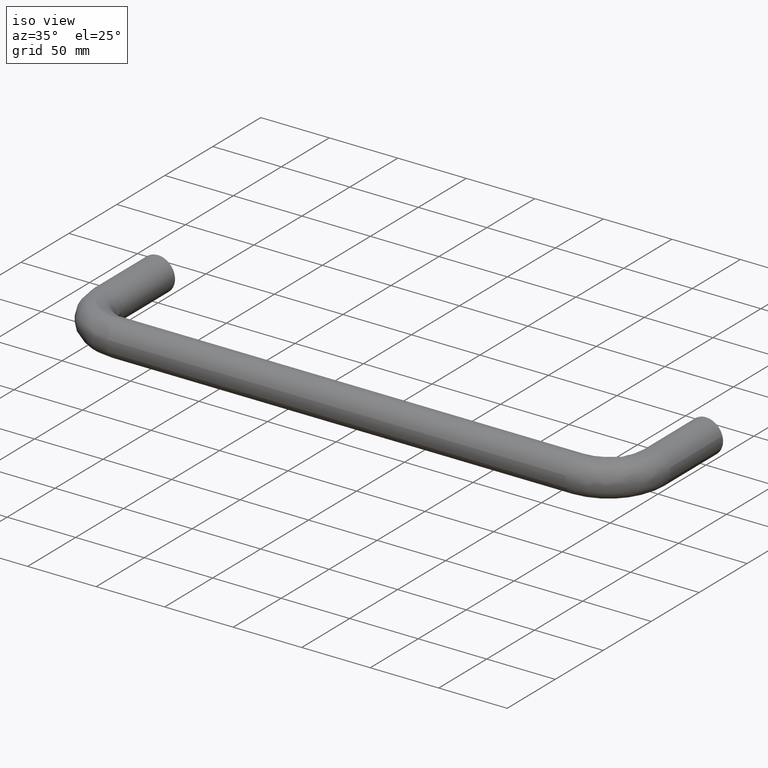
[diagram: clean part render]
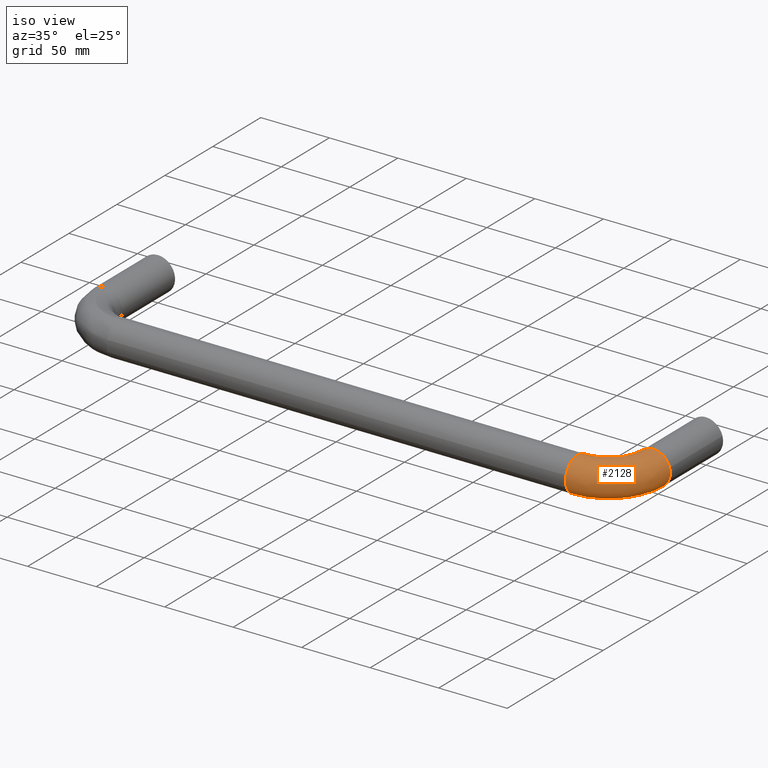
[diagram: same view with one face highlighted and labeled with its STEP entity id]
A machine part, iso view. The second image highlights one B-rep face of the part: STEP entity #2128.
In plain terms, the highlighted face is a freeform B-spline surface patch.
Its self-contained STEP definition (entity closure, byte-faithful):
#1170=CARTESIAN_POINT('',(411.436217568483300,-55.000000000403787,-5.046080430949266));
#1171=VERTEX_POINT('',#1170);
#1172=CARTESIAN_POINT('',(405.036330454572180,-55.000000002833112,-11.440514654173059));
#1173=VERTEX_POINT('',#1172);
#1174=CARTESIAN_POINT('',(411.436217568483300,-55.000000000403787,-5.046080430949266));
#1175=CARTESIAN_POINT('',(409.477393143603480,-55.000000001147335,-9.485475043565112));
#1176=CARTESIAN_POINT('',(405.036330454572240,-55.000000002833112,-11.440514654173068));
#1184=(BOUNDED_CURVE()B_SPLINE_CURVE(2,(#1174,#1175,#1176),.UNSPECIFIED.,.F.,.U.)B_SPLINE_CURVE_WITH_KNOTS((3,3),(0.318548117644688,0.431585009638875),.UNSPECIFIED.)CURVE()GEOMETRIC_REPRESENTATION_ITEM()RATIONAL_B_SPLINE_CURVE((0.883422078894007,0.823614264653065,0.883563120282062))REPRESENTATION_ITEM(''));
#1185=EDGE_CURVE('',#1171,#1173,#1184,.T.);
#1202=CARTESIAN_POINT('',(388.559485342505410,-55.000000000164668,-5.036330447026957));
#1203=VERTEX_POINT('',#1202);
#1217=CARTESIAN_POINT('',(400.0,-55.0,12.500000000000000));
#1218=VERTEX_POINT('',#1217);
#1219=CARTESIAN_POINT('',(388.559485342505470,-55.000000000164654,-5.036330447026957));
#1220=CARTESIAN_POINT('',(387.500000000000000,-55.000000000000007,-2.629606401398224));
#1221=CARTESIAN_POINT('',(387.500000000000000,-55.0,0.0));
#1222=CARTESIAN_POINT('',(387.499999999999940,-55.0,12.499999999999998));
#1223=CARTESIAN_POINT('',(400.0,-55.0,12.500000000000000));
#1231=(BOUNDED_CURVE()B_SPLINE_CURVE(2,(#1219,#1220,#1221,#1222,#1223),.UNSPECIFIED.,.F.,.U.)B_SPLINE_CURVE_WITH_KNOTS((3,2,3),(0.681585009844901,0.750000000000000,1.0),.UNSPECIFIED.)CURVE()GEOMETRIC_REPRESENTATION_ITEM()RATIONAL_B_SPLINE_CURVE((0.883563120500592,0.919846853273529,1.0,0.707106781186547,1.0))REPRESENTATION_ITEM(''));
#1232=EDGE_CURVE('',#1203,#1218,#1231,.T.);
#1234=CARTESIAN_POINT('',(412.045380664979120,-55.0,3.340479701442453));
#1235=VERTEX_POINT('',#1234);
#1236=CARTESIAN_POINT('',(400.0,-55.0,12.500000000000000));
#1237=CARTESIAN_POINT('',(409.505220873614410,-54.999999999999993,12.499999999999998));
#1238=CARTESIAN_POINT('',(412.045380664979120,-55.000000000000007,3.340479701442453));
#1246=(BOUNDED_CURVE()B_SPLINE_CURVE(2,(#1236,#1237,#1238),.UNSPECIFIED.,.F.,.U.)B_SPLINE_CURVE_WITH_KNOTS((3,3),(0.0,0.204451173353575),.UNSPECIFIED.)CURVE()GEOMETRIC_REPRESENTATION_ITEM()RATIONAL_B_SPLINE_CURVE((1.0,0.760470550985137,0.912717717200866))REPRESENTATION_ITEM(''));
#1247=EDGE_CURVE('',#1218,#1235,#1246,.T.);
#1325=CARTESIAN_POINT('',(412.045380664979180,-55.000000000000007,3.340479701442453));
#1326=CARTESIAN_POINT('',(412.500000000000060,-55.000000000000007,1.701175339017233));
#1327=CARTESIAN_POINT('',(412.500000000000110,-55.0,0.0));
#1328=CARTESIAN_POINT('',(412.500000000000000,-54.999999999999993,-2.635170122350718));
#1329=CARTESIAN_POINT('',(411.436217568483360,-55.000000000403794,-5.046080430949266));
#1337=(BOUNDED_CURVE()B_SPLINE_CURVE(2,(#1325,#1326,#1327,#1328,#1329),.UNSPECIFIED.,.F.,.U.)B_SPLINE_CURVE_WITH_KNOTS((3,2,3),(0.204451173353575,0.250000000000000,0.318548117644687),.UNSPECIFIED.)CURVE()GEOMETRIC_REPRESENTATION_ITEM()RATIONAL_B_SPLINE_CURVE((0.912717717200866,0.946636230201411,1.0,0.919690884717777,0.883422078894007))REPRESENTATION_ITEM(''));
#1338=EDGE_CURVE('',#1235,#1171,#1337,.T.);
#1386=CARTESIAN_POINT('',(367.499999999861190,-98.936217568713488,-5.046080431050863));
#1387=VERTEX_POINT('',#1386);
#1388=CARTESIAN_POINT('',(367.499999999025990,-92.536330449781843,-11.440514656281859));
#1389=VERTEX_POINT('',#1388);
#1390=CARTESIAN_POINT('',(367.499999999861250,-98.936217568713474,-5.046080431050863));
#1391=CARTESIAN_POINT('',(367.499999999605450,-96.977393142822223,-9.485475048348869));
#1392=CARTESIAN_POINT('',(367.499999999026100,-92.536330449781843,-11.440514656281859));
#1400=(BOUNDED_CURVE()B_SPLINE_CURVE(2,(#1390,#1391,#1392),.UNSPECIFIED.,.F.,.U.)B_SPLINE_CURVE_WITH_KNOTS((3,3),(0.318548117651567,0.431585009769677),.UNSPECIFIED.)CURVE()GEOMETRIC_REPRESENTATION_ITEM()RATIONAL_B_SPLINE_CURVE((0.883422078886727,0.823614264587506,0.883563120420803))REPRESENTATION_ITEM(''));
#1401=EDGE_CURVE('',#1387,#1389,#1400,.T.);
#1487=CARTESIAN_POINT('',(367.500000000000000,-99.545380664979035,3.340479701442447));
#1488=VERTEX_POINT('',#1487);
#1494=CARTESIAN_POINT('',(367.500000000000000,-87.500000000000000,12.500000000000000));
#1495=VERTEX_POINT('',#1494);
#1496=CARTESIAN_POINT('',(367.500000000000000,-87.500000000000000,12.500000000000000));
#1497=CARTESIAN_POINT('',(367.499999999999940,-97.005220873614405,12.499999999999998));
#1498=CARTESIAN_POINT('',(367.500000000000000,-99.545380664979035,3.340479701442447));
#1506=(BOUNDED_CURVE()B_SPLINE_CURVE(2,(#1496,#1497,#1498),.UNSPECIFIED.,.F.,.U.)B_SPLINE_CURVE_WITH_KNOTS((3,3),(0.0,0.204451173353575),.UNSPECIFIED.)CURVE()GEOMETRIC_REPRESENTATION_ITEM()RATIONAL_B_SPLINE_CURVE((1.0,0.760470550985137,0.912717717200867))REPRESENTATION_ITEM(''));
#1507=EDGE_CURVE('',#1495,#1488,#1506,.T.);
#1509=CARTESIAN_POINT('',(367.499999998566010,-76.059485343306193,-5.036330448846069));
#1510=VERTEX_POINT('',#1509);
#1511=CARTESIAN_POINT('',(367.499999998566010,-76.059485343306193,-5.036330448846069));
#1512=CARTESIAN_POINT('',(367.500000000000000,-75.0,-2.629606403473759));
#1513=CARTESIAN_POINT('',(367.500000000000000,-75.0,0.0));
#1514=CARTESIAN_POINT('',(367.500000000000000,-75.0,12.499999999999998));
#1515=CARTESIAN_POINT('',(367.500000000000000,-87.500000000000000,12.500000000000000));
#1523=(BOUNDED_CURVE()B_SPLINE_CURVE(2,(#1511,#1512,#1513,#1514,#1515),.UNSPECIFIED.,.F.,.U.)B_SPLINE_CURVE_WITH_KNOTS((3,2,3),(0.681585009795229,0.750000000000000,1.0),.UNSPECIFIED.)CURVE()GEOMETRIC_REPRESENTATION_ITEM()RATIONAL_B_SPLINE_CURVE((0.883563120447906,0.919846853215335,1.0,0.707106781186547,1.0))REPRESENTATION_ITEM(''));
#1524=EDGE_CURVE('',#1510,#1495,#1523,.T.);
#1571=CARTESIAN_POINT('',(367.500000000000000,-99.545380664979035,3.340479701442448));
#1572=CARTESIAN_POINT('',(367.499999999999940,-99.999999999999986,1.701175339017228));
#1573=CARTESIAN_POINT('',(367.500000000000000,-99.999999999999986,0.0));
#1574=CARTESIAN_POINT('',(367.500000000000000,-99.999999999999986,-2.635170122638260));
#1575=CARTESIAN_POINT('',(367.499999999861190,-98.936217568713502,-5.046080431050863));
#1583=(BOUNDED_CURVE()B_SPLINE_CURVE(2,(#1571,#1572,#1573,#1574,#1575),.UNSPECIFIED.,.F.,.U.)B_SPLINE_CURVE_WITH_KNOTS((3,2,3),(0.204451173353575,0.250000000000000,0.318548117651566),.UNSPECIFIED.)CURVE()GEOMETRIC_REPRESENTATION_ITEM()RATIONAL_B_SPLINE_CURVE((0.912717717200867,0.946636230201411,1.0,0.919690884709718,0.883422078886728))REPRESENTATION_ITEM(''));
#1584=EDGE_CURVE('',#1488,#1387,#1583,.T.);
#2035=CARTESIAN_POINT('',(364.623906922201230,-92.181548807276030,-11.547800733240207));
#2036=CARTESIAN_POINT('',(370.069044684096470,-92.602744898536827,-11.547800733240203));
#2037=CARTESIAN_POINT('',(375.406300521208550,-91.444888464205079,-11.547800733240200));
#2038=CARTESIAN_POINT('',(407.114252958828670,-84.566211880238185,-11.547800733240205));
#2039=CARTESIAN_POINT('',(404.688223559311500,-52.211539564081633,-11.547800733240210));
#2040=CARTESIAN_POINT('',(364.614550799030840,-92.302502872702192,-11.494395410791146));
#2041=CARTESIAN_POINT('',(370.077401958303030,-92.725069143022637,-11.494395410791151));
#2042=CARTESIAN_POINT('',(375.432020245674100,-91.563446124258419,-11.494395410791155));
#2043=CARTESIAN_POINT('',(407.243120773588880,-84.662392745233959,-11.494395410791149));
#2044=CARTESIAN_POINT('',(404.809199338152670,-52.202468515757296,-11.494395410791155));
#2045=CARTESIAN_POINT('',(363.722792435613200,-103.830974384857380,-6.404184211340684));
#2046=CARTESIAN_POINT('',(370.873957223054620,-104.384136267649470,-6.404184211340684));
#2047=CARTESIAN_POINT('',(377.883439383637780,-102.863509513254230,-6.404184211340684));
#2048=CARTESIAN_POINT('',(419.525873949857610,-93.829660982241066,-6.404184211340684));
#2049=CARTESIAN_POINT('',(416.339740416830860,-51.337881436158114,-6.404184211340683));
#2050=CARTESIAN_POINT('',(364.111205887286190,-98.809643948000627,5.036330446420782));
#2051=CARTESIAN_POINT('',(370.527010345377110,-99.305923726072024,5.036330446420783));
#2052=CARTESIAN_POINT('',(376.815701521079690,-97.941664308211244,5.036330446420782));
#2053=CARTESIAN_POINT('',(414.176009285893370,-89.836774069801720,5.036330446420782));
#2054=CARTESIAN_POINT('',(411.317508561484940,-51.714460188469481,5.036330446420782));
#2055=CARTESIAN_POINT('',(364.499619338959460,-93.788313511143841,16.476845104182242));
#2056=CARTESIAN_POINT('',(370.180063467699770,-94.227711184494538,16.476845104182253));
#2057=CARTESIAN_POINT('',(375.747963658521660,-93.019819103168246,16.476845104182242));
#2058=CARTESIAN_POINT('',(408.826144621929070,-85.843887157362403,16.476845104182246));
#2059=CARTESIAN_POINT('',(406.295276706138790,-52.091038940780827,16.476845104182257));
#2060=CARTESIAN_POINT('',(365.381938288125010,-82.381872834648888,11.440514657761472));
#2061=CARTESIAN_POINT('',(369.391939876175740,-82.692057272342296,11.440514657761465));
#2062=CARTESIAN_POINT('',(373.322493209908710,-81.839368810923276,11.440514657761470));
#2063=CARTESIAN_POINT('',(396.673406481281290,-76.773656016947371,11.440514657761467));
#2064=CARTESIAN_POINT('',(394.886788369835070,-52.946474218797881,11.440514657761472));
#2065=CARTESIAN_POINT('',(366.264257237290680,-70.975432158153978,6.404184211340685));
#2066=CARTESIAN_POINT('',(368.603816284651830,-71.156403360190069,6.404184211340685));
#2067=CARTESIAN_POINT('',(370.897022761295770,-70.658918518678320,6.404184211340686));
#2068=CARTESIAN_POINT('',(384.520668340633390,-67.703424876532353,6.404184211340686));
#2069=CARTESIAN_POINT('',(383.478300033531180,-53.801909496814893,6.404184211340686));
#2070=CARTESIAN_POINT('',(365.871741792310900,-76.049792333693560,-5.157152509482980));
#2071=CARTESIAN_POINT('',(368.954427231541900,-76.288246366331080,-5.157152509482982));
#2072=CARTESIAN_POINT('',(371.976036890282500,-75.632742809412392,-5.157152509482979));
#2073=CARTESIAN_POINT('',(389.927032358441410,-71.738480244567114,-5.157152509482981));
#2074=CARTESIAN_POINT('',(388.553571147345390,-53.421353736202725,-5.157152509482982));
#2075=CARTESIAN_POINT('',(365.867675530753560,-76.102360139556424,-5.276922112591803));
#2076=CARTESIAN_POINT('',(368.958059383685740,-76.341409665256137,-5.276922112591802));
#2077=CARTESIAN_POINT('',(371.987214931118100,-75.684269114338832,-5.276922112591802));
#2078=CARTESIAN_POINT('',(389.983039556251810,-71.780281378088389,-5.276922112591802));
#2079=CARTESIAN_POINT('',(388.606148390068260,-53.417411370928718,-5.276922112591803));
#2087=(BOUNDED_SURFACE()B_SPLINE_SURFACE(2,2,((#2035,#2040,#2045,#2050,#2055,#2060,#2065,#2070,#2075),(#2036,#2041,#2046,#2051,#2056,#2061,#2066,#2071,#2076),(#2037,#2042,#2047,#2052,#2057,#2062,#2067,#2072,#2077),(#2038,#2043,#2048,#2053,#2058,#2063,#2068,#2073,#2078),(#2039,#2044,#2049,#2054,#2059,#2064,#2069,#2074,#2079)),.UNSPECIFIED.,.F.,.F.,.U.)B_SPLINE_SURFACE_WITH_KNOTS((3,2,3),(3,1,2,2,1,3),(0.0,14.200757796212409,80.264544104569453),(0.0,0.314744085540365,21.025422204195191,41.736100322850007,62.446778441504840,62.757458927473863),.UNSPECIFIED.)GEOMETRIC_REPRESENTATION_ITEM()RATIONAL_B_SPLINE_SURFACE(((0.918220302075770,0.914169226442897,0.643550716118729,0.910118150810024,0.643550716118729,0.910118150810024,0.643550716118729,0.914116923794614,0.918115696779203),(0.952335829264829,0.948134240099871,0.667461178459471,0.943932650934912,0.667461178459471,0.943932650934912,0.667461178459471,0.948079994200697,0.952227337466482),(1.008902307088958,1.004451153544479,0.707106781186548,1.0,0.707106781186548,1.0,0.707106781186548,1.004393685568221,1.008787371136441),(0.745747639090438,0.742457491745447,0.522670241657215,0.739167344400456,0.522670241657215,0.739167344400456,0.522670241657215,0.742415013294048,0.745662682187640),(0.968483703728538,0.964210872117062,0.678778697960426,0.959938040505585,0.678778697960426,0.959938040505585,0.678778697960426,0.964155706420540,0.968373372335495)))REPRESENTATION_ITEM('')SURFACE());
#2088=ORIENTED_EDGE('',*,*,#1185,.F.);
#2089=ORIENTED_EDGE('',*,*,#1338,.F.);
#2090=ORIENTED_EDGE('',*,*,#1247,.F.);
#2091=ORIENTED_EDGE('',*,*,#1232,.F.);
#2092=CARTESIAN_POINT('',(367.499999998565950,-76.059485343306193,-5.036330448846069));
#2093=CARTESIAN_POINT('',(369.758045111754260,-76.059485342546068,-5.036330446420782));
#2094=CARTESIAN_POINT('',(371.964760623853920,-75.580763723721319,-5.036330446420783));
#2095=CARTESIAN_POINT('',(388.559485341973020,-71.980728541365323,-5.036330446420782));
#2096=CARTESIAN_POINT('',(388.559485342505410,-55.000000000164668,-5.036330447026957));
#2104=(BOUNDED_CURVE()B_SPLINE_CURVE(2,(#2092,#2093,#2094,#2095,#2096),.UNSPECIFIED.,.F.,.U.)B_SPLINE_CURVE_WITH_KNOTS((3,2,3),(-2.295019327156723,-2.0,-0.255468157625406),.UNSPECIFIED.)CURVE()GEOMETRIC_REPRESENTATION_ITEM()RATIONAL_B_SPLINE_CURVE((0.928943411308721,0.958324108992518,1.0,0.753558793511648,0.937042119015438))REPRESENTATION_ITEM(''));
#2105=EDGE_CURVE('',#1510,#1203,#2104,.T.);
#2106=ORIENTED_EDGE('',*,*,#2105,.F.);
#2107=ORIENTED_EDGE('',*,*,#1524,.T.);
#2108=ORIENTED_EDGE('',*,*,#1507,.T.);
#2109=ORIENTED_EDGE('',*,*,#1584,.T.);
#2110=ORIENTED_EDGE('',*,*,#1401,.T.);
#2111=CARTESIAN_POINT('',(367.499999999025990,-92.536330449781843,-11.440514656281859));
#2112=CARTESIAN_POINT('',(371.524729291018050,-92.536330446629634,-11.440514657761467));
#2113=CARTESIAN_POINT('',(375.457968935024890,-91.683059221009273,-11.440514657761470));
#2114=CARTESIAN_POINT('',(405.036330441852040,-85.266372962589031,-11.440514657761465));
#2115=CARTESIAN_POINT('',(405.036330454572120,-55.000000002833119,-11.440514654173059));
#2123=(BOUNDED_CURVE()B_SPLINE_CURVE(2,(#2111,#2112,#2113,#2114,#2115),.UNSPECIFIED.,.F.,.U.)B_SPLINE_CURVE_WITH_KNOTS((3,2,3),(-2.295019327044304,-2.0,-0.255468157807430),.UNSPECIFIED.)CURVE()GEOMETRIC_REPRESENTATION_ITEM()RATIONAL_B_SPLINE_CURVE((0.928943411331112,0.958324109008399,1.0,0.753558793537361,0.937042118977149))REPRESENTATION_ITEM(''));
#2124=EDGE_CURVE('',#1389,#1173,#2123,.T.);
#2125=ORIENTED_EDGE('',*,*,#2124,.T.);
#2126=EDGE_LOOP('',(#2088,#2089,#2090,#2091,#2106,#2107,#2108,#2109,#2110,#2125));
#2127=FACE_OUTER_BOUND('',#2126,.T.);
#2128=ADVANCED_FACE('',(#2127),#2087,.T.);